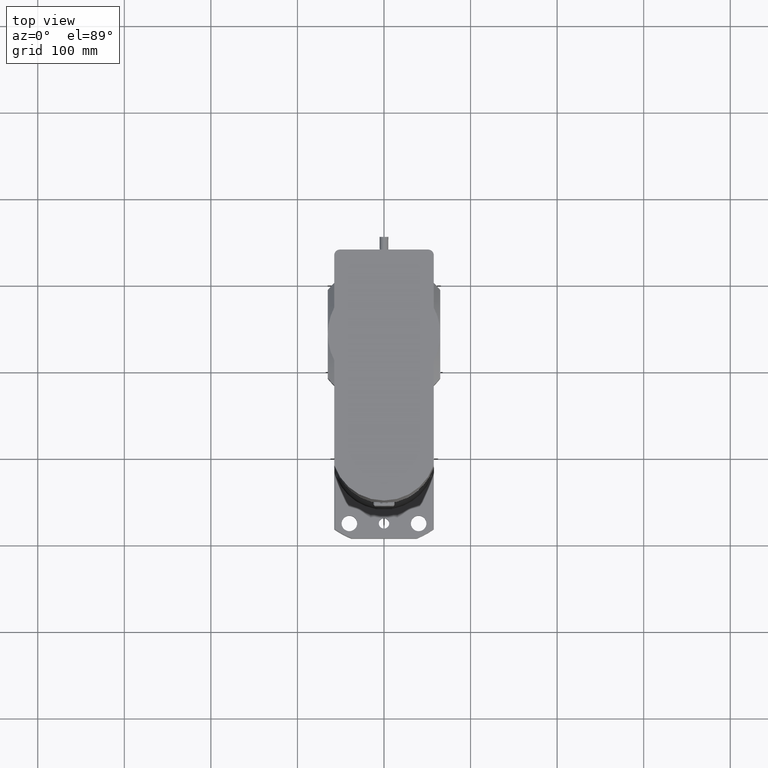
[diagram: clean part render]
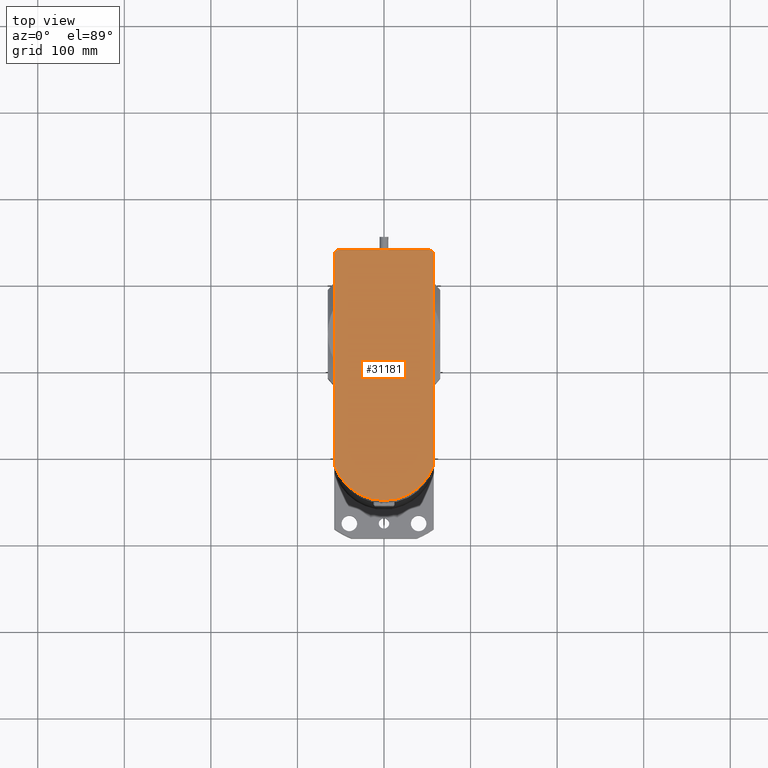
[diagram: same view with one face highlighted and labeled with its STEP entity id]
A machine part, top view. The second image highlights one B-rep face of the part: STEP entity #31181.
In plain terms, the highlighted planar face has unit normal (-0, 0, 1).
Its self-contained STEP definition (entity closure, byte-faithful):
#2708=LINE('',#47609,#5102);
#2712=LINE('',#47623,#5106);
#2714=LINE('',#47626,#5108);
#5102=VECTOR('',#37803,10.);
#5106=VECTOR('',#37819,10.);
#5108=VECTOR('',#37823,10.);
#7291=PLANE('',#33395);
#8442=FACE_OUTER_BOUND('',#10214,.T.);
#10214=EDGE_LOOP('',(#22713,#22714,#22715,#22716,#22717,#22718));
#12281=CIRCLE('',#33381,61.0000000000002);
#12285=CIRCLE('',#33386,6.6);
#12289=CIRCLE('',#33392,6.6);
#14357=VERTEX_POINT('',#47587);
#14358=VERTEX_POINT('',#47589);
#14363=VERTEX_POINT('',#47600);
#14364=VERTEX_POINT('',#47602);
#14366=VERTEX_POINT('',#47608);
#14370=VERTEX_POINT('',#47618);
#17603=EDGE_CURVE('',#14358,#14357,#12281,.T.);
#17609=EDGE_CURVE('',#14364,#14363,#12285,.T.);
#17612=EDGE_CURVE('',#14366,#14364,#2708,.T.);
#17617=EDGE_CURVE('',#14370,#14366,#12289,.T.);
#17620=EDGE_CURVE('',#14357,#14370,#2712,.T.);
#17622=EDGE_CURVE('',#14363,#14358,#2714,.T.);
#22713=ORIENTED_EDGE('',*,*,#17622,.T.);
#22714=ORIENTED_EDGE('',*,*,#17603,.T.);
#22715=ORIENTED_EDGE('',*,*,#17620,.T.);
#22716=ORIENTED_EDGE('',*,*,#17617,.T.);
#22717=ORIENTED_EDGE('',*,*,#17612,.T.);
#22718=ORIENTED_EDGE('',*,*,#17609,.T.);
#31181=ADVANCED_FACE('',(#8442),#7291,.T.);
#33381=AXIS2_PLACEMENT_3D('',#47590,#37785,#37786);
#33386=AXIS2_PLACEMENT_3D('',#47603,#37797,#37798);
#33392=AXIS2_PLACEMENT_3D('',#47619,#37813,#37814);
#33395=AXIS2_PLACEMENT_3D('',#47627,#37824,#37825);
#37785=DIRECTION('center_axis',(-7.10429148815598E-16,2.4897625255593E-15,
1.));
#37786=DIRECTION('ref_axis',(-0.94262295081985,-0.333859210727635,1.61563331077478E-16));
#37797=DIRECTION('center_axis',(-7.10429148815598E-16,2.4897625255593E-15,
1.));
#37798=DIRECTION('ref_axis',(5.63308073921624E-13,1.,-2.4897625255589E-15));
#37803=DIRECTION('',(-1.,5.58858457084226E-13,-7.10429148816989E-16));
#37813=DIRECTION('center_axis',(-7.10429148815598E-16,2.4897625255593E-15,
1.));
#37814=DIRECTION('ref_axis',(1.,-6.18482793933298E-13,7.10429148817138E-16));
#37819=DIRECTION('',(5.77576563861647E-13,1.,-2.48976252555889E-15));
#37823=DIRECTION('',(-5.63308073921624E-13,-1.,2.4897625255589E-15));
#37824=DIRECTION('center_axis',(-7.10429148815598E-16,2.4897625255593E-15,
1.));
#37825=DIRECTION('ref_axis',(-5.63308073921624E-13,-1.,2.4897625255589E-15));
#47587=CARTESIAN_POINT('',(57.4999999999771,-20.3654118543289,732.00000000001));
#47589=CARTESIAN_POINT('',(-57.500000000019,-20.3654118542556,732.00000000001));
#47590=CARTESIAN_POINT('Origin',(-7.9987232762988E-12,1.30242483464826E-10,
732.00000000001));
#47600=CARTESIAN_POINT('',(-57.4999999998823,222.400000000164,732.00000000001));
#47602=CARTESIAN_POINT('',(-50.8999999998786,229.00000000016,732.00000000001));
#47603=CARTESIAN_POINT('Origin',(-50.8999999998824,222.40000000016,732.00000000001));
#47608=CARTESIAN_POINT('',(50.9000000001211,229.000000000103,732.00000000001));
#47609=CARTESIAN_POINT('',(50.9000000001211,229.000000000103,732.00000000001));
#47618=CARTESIAN_POINT('',(57.5000000001173,222.400000000099,732.00000000001));
#47619=CARTESIAN_POINT('Origin',(50.9000000001173,222.400000000103,732.00000000001));
#47623=CARTESIAN_POINT('',(57.4999999999771,-20.3654118543289,732.00000000001));
#47626=CARTESIAN_POINT('',(-57.4999999998823,222.400000000164,732.00000000001));
#47627=CARTESIAN_POINT('Origin',(4.73625166710437E-11,98.7077890512653,
732.00000000001));